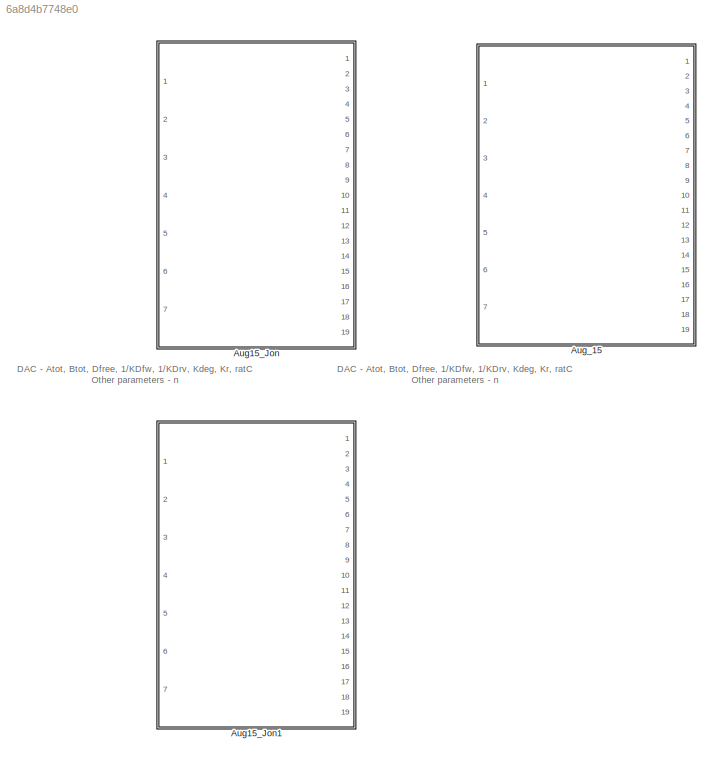
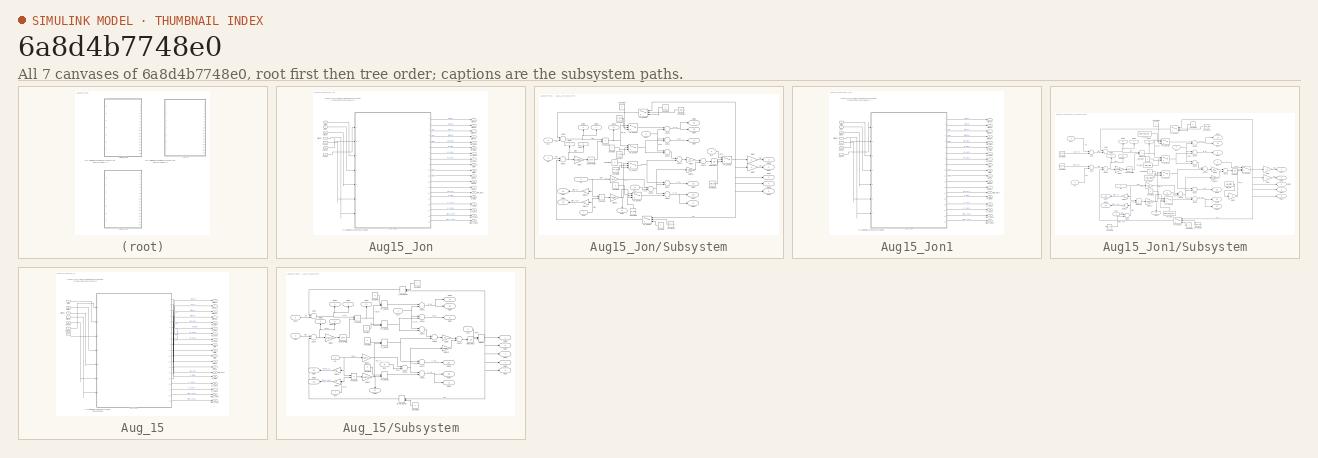
[diagram: thumbnail index - all 7 canvases of the model, root first then tree order]
MODEL slx_6a8d4b7748e0
KIND library
CONFIG AbsTol = auto
CONFIG EnableMultiTasking = off
CONFIG FixedStep = auto
CONFIG MaxStep = auto
CONFIG MinStep = auto
CONFIG RelTol = 1e-3
CONFIG SampleTimeConstraint = Unconstrained
CONFIG Solver = VariableStepAuto
CONFIG SolverName = VariableStepAuto
CONFIG StartTime = 0.0
CONFIG StopTime = 10.0
BLOCK [SubSystem] Aug15_Jon
  Ports = [7, 19]
  RequestExecContextInheritance = off
BLOCK [Outport] Aug15_Jon/Afree(12)
  IconDisplay = Port number
BLOCK [Outport] Aug15_Jon/Afree(13)
  IconDisplay = Port number
  Port = 2
BLOCK [Inport] Aug15_Jon/Atot(0)
  IconDisplay = Port number
BLOCK [Outport] Aug15_Jon/Bfree(14)
  IconDisplay = Port number
  Port = 3
BLOCK [Outport] Aug15_Jon/Bfree(15)
  IconDisplay = Port number
  Port = 4
BLOCK [Inport] Aug15_Jon/Btot(1)
  IconDisplay = Port number
  Port = 2
BLOCK [Inport] Aug15_Jon/Cdeg(4)
  IconDisplay = Port number
  Port = 5
BLOCK [Inport] Aug15_Jon/Cfree(2)
  IconDisplay = Port number
  Port = 3
BLOCK [Outport] Aug15_Jon/Cfree_cp(24)
  IconDisplay = Port number
  Port = 18
BLOCK [Inport] Aug15_Jon/Cprod(5)
  IconDisplay = Port number
  Port = 6
BLOCK [Outport] Aug15_Jon/Ctot+(10)
  IconDisplay = Port number
  Port = 12
BLOCK [Outport] Aug15_Jon/Ctot+(11)
  IconDisplay = Port number
  Port = 13
BLOCK [Outport] Aug15_Jon/Ctot+(9)
  IconDisplay = Port number
  Port = 11
BLOCK [Outport] Aug15_Jon/Ctot-(7)
  IconDisplay = Port number
  Port = 9
BLOCK [Outport] Aug15_Jon/Ctot-(8)
  IconDisplay = Port number
  Port = 10
BLOCK [Inport] Aug15_Jon/Ctot_in(6)
  IconDisplay = Port number
  Port = 7
BLOCK [Inport] Aug15_Jon/Dfree(3)
  IconDisplay = Port number
  Port = 4
BLOCK [Outport] Aug15_Jon/Dfree_cp(25)
  IconDisplay = Port number
  Port = 19
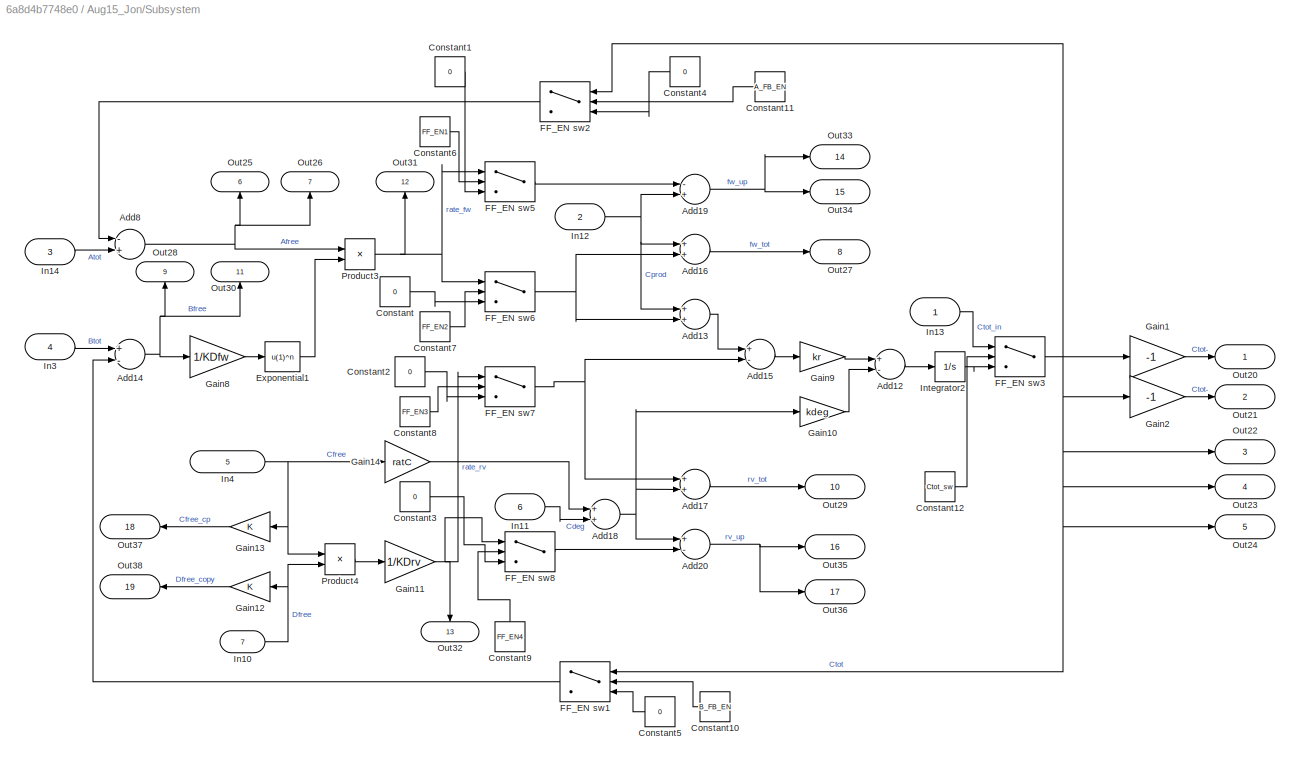
BLOCK [SubSystem] Aug15_Jon/Subsystem
  Ports = [7, 19]
  RequestExecContextInheritance = off
BLOCK [Sum] Aug15_Jon/Subsystem/Add12
  InputSameDT = off
  Inputs = +-
  OutDataTypeStr = Inherit: Inherit via internal rule
  Ports = [2, 1]
  SaturateOnIntegerOverflow = off
BLOCK [Sum] Aug15_Jon/Subsystem/Add13
  InputSameDT = off
  OutDataTypeStr = Inherit: Inherit via internal rule
  Ports = [2, 1]
  SaturateOnIntegerOverflow = off
BLOCK [Sum] Aug15_Jon/Subsystem/Add14
  InputSameDT = off
  Inputs = +-
  OutDataTypeStr = Inherit: Inherit via internal rule
  Ports = [2, 1]
  SaturateOnIntegerOverflow = off
BLOCK [Sum] Aug15_Jon/Subsystem/Add15
  InputSameDT = off
  Inputs = +-
  OutDataTypeStr = Inherit: Inherit via internal rule
  Ports = [2, 1]
  SaturateOnIntegerOverflow = off
BLOCK [Sum] Aug15_Jon/Subsystem/Add16
  InputSameDT = off
  OutDataTypeStr = Inherit: Inherit via internal rule
  Ports = [2, 1]
  SaturateOnIntegerOverflow = off
BLOCK [Sum] Aug15_Jon/Subsystem/Add17
  InputSameDT = off
  OutDataTypeStr = Inherit: Inherit via internal rule
  Ports = [2, 1]
  SaturateOnIntegerOverflow = off
BLOCK [Sum] Aug15_Jon/Subsystem/Add18
  InputSameDT = off
  OutDataTypeStr = Inherit: Inherit via internal rule
  Ports = [2, 1]
  SaturateOnIntegerOverflow = off
BLOCK [Sum] Aug15_Jon/Subsystem/Add19
  InputSameDT = off
  Inputs = -+
  OutDataTypeStr = Inherit: Inherit via internal rule
  Ports = [2, 1]
  SaturateOnIntegerOverflow = off
BLOCK [Sum] Aug15_Jon/Subsystem/Add20
  InputSameDT = off
  Inputs = +-
  OutDataTypeStr = Inherit: Inherit via internal rule
  Ports = [2, 1]
  SaturateOnIntegerOverflow = off
BLOCK [Sum] Aug15_Jon/Subsystem/Add8
  InputSameDT = off
  Inputs = -+
  OutDataTypeStr = Inherit: Inherit via internal rule
  Ports = [2, 1]
  SaturateOnIntegerOverflow = off
BLOCK [Constant] Aug15_Jon/Subsystem/Constant
  Value = 0
BLOCK [Constant] Aug15_Jon/Subsystem/Constant1
  Value = 0
BLOCK [Constant] Aug15_Jon/Subsystem/Constant10
  Value = B_FB_EN
BLOCK [Constant] Aug15_Jon/Subsystem/Constant11
  Value = A_FB_EN
BLOCK [Constant] Aug15_Jon/Subsystem/Constant12
  Value = Ctot_sw
BLOCK [Constant] Aug15_Jon/Subsystem/Constant2
  Value = 0
BLOCK [Constant] Aug15_Jon/Subsystem/Constant3
  Value = 0
BLOCK [Constant] Aug15_Jon/Subsystem/Constant4
  Value = 0
BLOCK [Constant] Aug15_Jon/Subsystem/Constant5
  Value = 0
BLOCK [Constant] Aug15_Jon/Subsystem/Constant6
  Value = FF_EN1
BLOCK [Constant] Aug15_Jon/Subsystem/Constant7
  Value = FF_EN2
BLOCK [Constant] Aug15_Jon/Subsystem/Constant8
  Value = FF_EN3
BLOCK [Constant] Aug15_Jon/Subsystem/Constant9
  Value = FF_EN4
BLOCK [Fcn] Aug15_Jon/Subsystem/Exponential1
  Expr = u(1)^n
BLOCK [Switch] Aug15_Jon/Subsystem/FF_EN sw1
  Criteria = u2 > Threshold
  InputSameDT = off
  SaturateOnIntegerOverflow = off
  Threshold = 0.5
BLOCK [Switch] Aug15_Jon/Subsystem/FF_EN sw2
  Criteria = u2 > Threshold
  InputSameDT = off
  SaturateOnIntegerOverflow = off
  Threshold = 0.5
BLOCK [Switch] Aug15_Jon/Subsystem/FF_EN sw3
  Criteria = u2 > Threshold
  InputSameDT = off
  SaturateOnIntegerOverflow = off
  Threshold = 0.5
BLOCK [Switch] Aug15_Jon/Subsystem/FF_EN sw5
  Criteria = u2 > Threshold
  InputSameDT = off
  SaturateOnIntegerOverflow = off
  Threshold = 0.5
BLOCK [Switch] Aug15_Jon/Subsystem/FF_EN sw6
  Criteria = u2 > Threshold
  InputSameDT = off
  SaturateOnIntegerOverflow = off
  Threshold = 0.5
BLOCK [Switch] Aug15_Jon/Subsystem/FF_EN sw7
  Criteria = u2 > Threshold
  InputSameDT = off
  SaturateOnIntegerOverflow = off
  Threshold = 0.5
BLOCK [Switch] Aug15_Jon/Subsystem/FF_EN sw8
  Criteria = u2 > Threshold
  InputSameDT = off
  SaturateOnIntegerOverflow = off
  Threshold = 0.5
BLOCK [Gain] Aug15_Jon/Subsystem/Gain1
  Gain = -1
  OutDataTypeStr = Inherit: Inherit via internal rule
  ParamDataTypeStr = Inherit: Inherit via internal rule
  SaturateOnIntegerOverflow = off
BLOCK [Gain] Aug15_Jon/Subsystem/Gain10
  Gain = kdeg
  OutDataTypeStr = Inherit: Inherit via internal rule
  ParamDataTypeStr = Inherit: Inherit via internal rule
  SaturateOnIntegerOverflow = off
BLOCK [Gain] Aug15_Jon/Subsystem/Gain11
  Gain = 1/KDrv
  OutDataTypeStr = Inherit: Inherit via internal rule
  ParamDataTypeStr = Inherit: Inherit via internal rule
  SaturateOnIntegerOverflow = off
BLOCK [Gain] Aug15_Jon/Subsystem/Gain12
  OutDataTypeStr = Inherit: Inherit via internal rule
  ParamDataTypeStr = Inherit: Inherit via internal rule
  SaturateOnIntegerOverflow = off
BLOCK [Gain] Aug15_Jon/Subsystem/Gain13
  OutDataTypeStr = Inherit: Inherit via internal rule
  ParamDataTypeStr = Inherit: Inherit via internal rule
  SaturateOnIntegerOverflow = off
BLOCK [Gain] Aug15_Jon/Subsystem/Gain14
  Gain = ratC
  OutDataTypeStr = Inherit: Inherit via internal rule
  ParamDataTypeStr = Inherit: Inherit via internal rule
  SaturateOnIntegerOverflow = off
BLOCK [Gain] Aug15_Jon/Subsystem/Gain2
  Gain = -1
  OutDataTypeStr = Inherit: Inherit via internal rule
  ParamDataTypeStr = Inherit: Inherit via internal rule
  SaturateOnIntegerOverflow = off
BLOCK [Gain] Aug15_Jon/Subsystem/Gain8
  Gain = 1/KDfw
  OutDataTypeStr = Inherit: Inherit via internal rule
  ParamDataTypeStr = Inherit: Inherit via internal rule
  SaturateOnIntegerOverflow = off
BLOCK [Gain] Aug15_Jon/Subsystem/Gain9
  Gain = kr
  OutDataTypeStr = Inherit: Inherit via internal rule
  ParamDataTypeStr = Inherit: Inherit via internal rule
  SaturateOnIntegerOverflow = off
BLOCK [Inport] Aug15_Jon/Subsystem/In10
  IconDisplay = Port number and signal name
  Port = 7
BLOCK [Inport] Aug15_Jon/Subsystem/In11
  IconDisplay = Port number and signal name
  Port = 6
BLOCK [Inport] Aug15_Jon/Subsystem/In12
  IconDisplay = Port number and signal name
  Port = 2
BLOCK [Inport] Aug15_Jon/Subsystem/In13
  IconDisplay = Port number and signal name
BLOCK [Inport] Aug15_Jon/Subsystem/In14
  IconDisplay = Port number and signal name
  Port = 3
BLOCK [Inport] Aug15_Jon/Subsystem/In3
  IconDisplay = Port number and signal name
  Port = 4
BLOCK [Inport] Aug15_Jon/Subsystem/In4
  IconDisplay = Port number and signal name
  Port = 5
BLOCK [Integrator] Aug15_Jon/Subsystem/Integrator2
  InitialCondition = c_ic
  Ports = [1, 1]
BLOCK [Outport] Aug15_Jon/Subsystem/Out20
  IconDisplay = Port number and signal name
BLOCK [Outport] Aug15_Jon/Subsystem/Out21
  IconDisplay = Port number and signal name
  Port = 2
BLOCK [Outport] Aug15_Jon/Subsystem/Out22
  IconDisplay = Port number and signal name
  Port = 3
BLOCK [Outport] Aug15_Jon/Subsystem/Out23
  IconDisplay = Port number and signal name
  Port = 4
BLOCK [Outport] Aug15_Jon/Subsystem/Out24
  IconDisplay = Port number and signal name
  Port = 5
BLOCK [Outport] Aug15_Jon/Subsystem/Out25
  IconDisplay = Port number and signal name
  Port = 6
BLOCK [Outport] Aug15_Jon/Subsystem/Out26
  IconDisplay = Port number and signal name
  Port = 7
BLOCK [Outport] Aug15_Jon/Subsystem/Out27
  IconDisplay = Port number and signal name
  Port = 8
BLOCK [Outport] Aug15_Jon/Subsystem/Out28
  IconDisplay = Port number and signal name
  Port = 9
BLOCK [Outport] Aug15_Jon/Subsystem/Out29
  IconDisplay = Port number and signal name
  Port = 10
BLOCK [Outport] Aug15_Jon/Subsystem/Out30
  IconDisplay = Port number and signal name
  Port = 11
BLOCK [Outport] Aug15_Jon/Subsystem/Out31
  IconDisplay = Port number and signal name
  Port = 12
BLOCK [Outport] Aug15_Jon/Subsystem/Out32
  IconDisplay = Port number and signal name
  Port = 13
BLOCK [Outport] Aug15_Jon/Subsystem/Out33
  IconDisplay = Port number and signal name
  Port = 14
BLOCK [Outport] Aug15_Jon/Subsystem/Out34
  IconDisplay = Port number and signal name
  Port = 15
BLOCK [Outport] Aug15_Jon/Subsystem/Out35
  IconDisplay = Port number and signal name
  Port = 16
BLOCK [Outport] Aug15_Jon/Subsystem/Out36
  IconDisplay = Port number and signal name
  Port = 17
BLOCK [Outport] Aug15_Jon/Subsystem/Out37
  IconDisplay = Port number and signal name
  Port = 18
BLOCK [Outport] Aug15_Jon/Subsystem/Out38
  IconDisplay = Port number and signal name
  Port = 19
BLOCK [Product] Aug15_Jon/Subsystem/Product3
  InputSameDT = off
  OutDataTypeStr = Inherit: Inherit via internal rule
  Ports = [2, 1]
  SaturateOnIntegerOverflow = off
BLOCK [Product] Aug15_Jon/Subsystem/Product4
  InputSameDT = off
  OutDataTypeStr = Inherit: Inherit via internal rule
  Ports = [2, 1]
  SaturateOnIntegerOverflow = off
BLOCK [Outport] Aug15_Jon/fw_tot(18)
  IconDisplay = Port number
  Port = 6
BLOCK [Outport] Aug15_Jon/fw_up(20)
  IconDisplay = Port number
  Port = 7
BLOCK [Outport] Aug15_Jon/fw_up(21)
  IconDisplay = Port number
  Port = 8
BLOCK [Outport] Aug15_Jon/rate_fw(16)
  IconDisplay = Port number
  Port = 5
BLOCK [Outport] Aug15_Jon/rate_rv(17)
  IconDisplay = Port number
  Port = 14
BLOCK [Outport] Aug15_Jon/rv_tot(19)
  IconDisplay = Port number
  Port = 15
BLOCK [Outport] Aug15_Jon/rv_up(22)
  IconDisplay = Port number
  Port = 16
BLOCK [Outport] Aug15_Jon/rv_up(23)
  IconDisplay = Port number
  Port = 17
BLOCK [SubSystem] Aug15_Jon1
  Ports = [7, 19]
  RequestExecContextInheritance = off
BLOCK [Outport] Aug15_Jon1/Afree(12)
  IconDisplay = Port number
BLOCK [Outport] Aug15_Jon1/Afree(13)
  IconDisplay = Port number
  Port = 2
BLOCK [Inport] Aug15_Jon1/Atot(0)
  IconDisplay = Port number
BLOCK [Outport] Aug15_Jon1/Bfree(14)
  IconDisplay = Port number
  Port = 3
BLOCK [Outport] Aug15_Jon1/Bfree(15)
  IconDisplay = Port number
  Port = 4
BLOCK [Inport] Aug15_Jon1/Btot(1)
  IconDisplay = Port number
  Port = 2
BLOCK [Inport] Aug15_Jon1/Cdeg(4)
  IconDisplay = Port number
  Port = 5
BLOCK [Inport] Aug15_Jon1/Cfree(2)
  IconDisplay = Port number
  Port = 3
BLOCK [Outport] Aug15_Jon1/Cfree_cp(24)
  IconDisplay = Port number
  Port = 18
BLOCK [Inport] Aug15_Jon1/Cprod(5)
  IconDisplay = Port number
  Port = 6
BLOCK [Outport] Aug15_Jon1/Ctot+(10)
  IconDisplay = Port number
  Port = 12
BLOCK [Outport] Aug15_Jon1/Ctot+(11)
  IconDisplay = Port number
  Port = 13
BLOCK [Outport] Aug15_Jon1/Ctot+(9)
  IconDisplay = Port number
  Port = 11
BLOCK [Outport] Aug15_Jon1/Ctot-(7)
  IconDisplay = Port number
  Port = 9
BLOCK [Outport] Aug15_Jon1/Ctot-(8)
  IconDisplay = Port number
  Port = 10
BLOCK [Inport] Aug15_Jon1/Ctot_in(6)
  IconDisplay = Port number
  Port = 7
BLOCK [Inport] Aug15_Jon1/Dfree(3)
  IconDisplay = Port number
  Port = 4
BLOCK [Outport] Aug15_Jon1/Dfree_cp(25)
  IconDisplay = Port number
  Port = 19
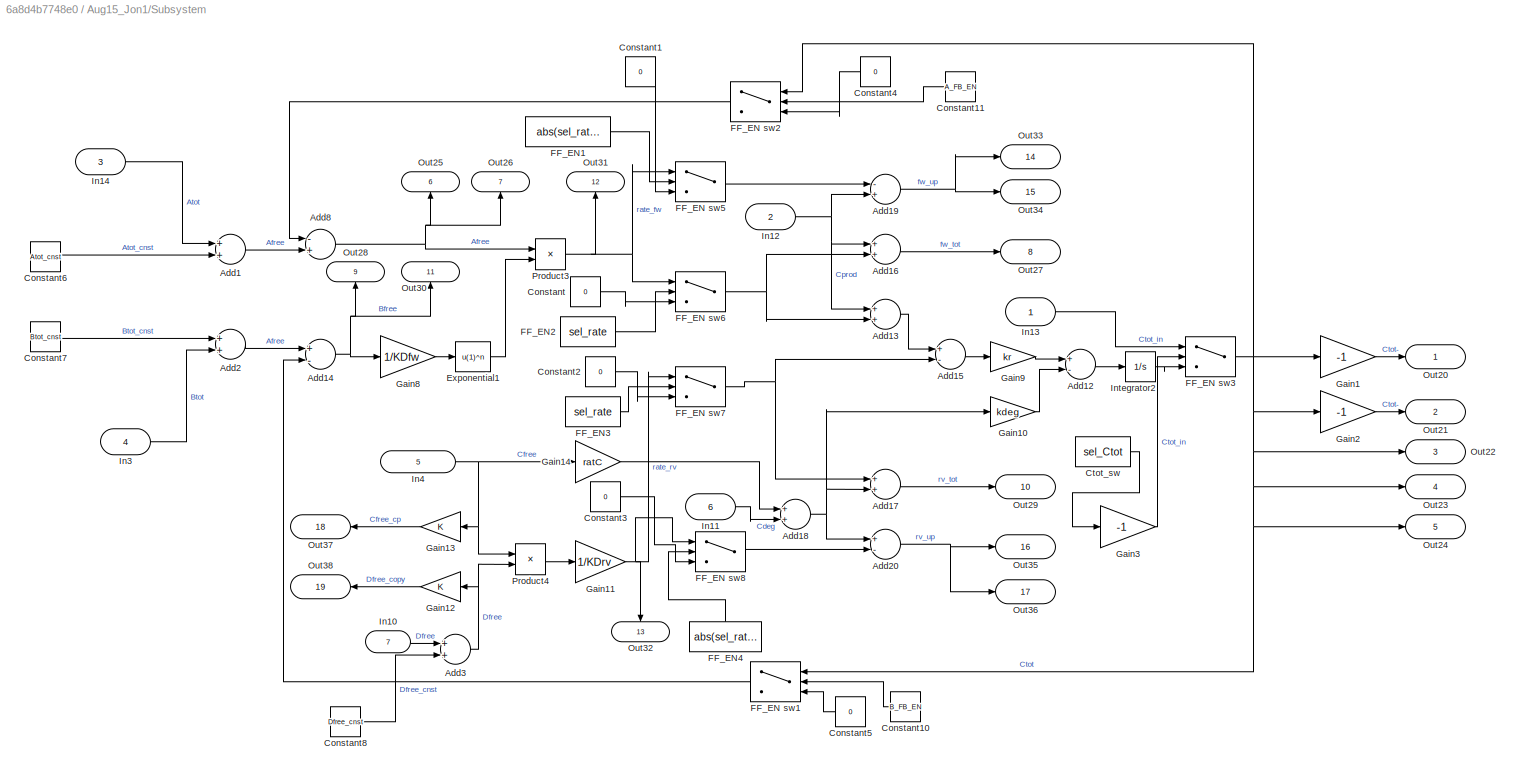
BLOCK [SubSystem] Aug15_Jon1/Subsystem
  Ports = [7, 19]
  RequestExecContextInheritance = off
BLOCK [Sum] Aug15_Jon1/Subsystem/Add1
  InputSameDT = off
  OutDataTypeStr = Inherit: Inherit via internal rule
  Ports = [2, 1]
  SaturateOnIntegerOverflow = off
BLOCK [Sum] Aug15_Jon1/Subsystem/Add12
  InputSameDT = off
  Inputs = +-
  OutDataTypeStr = Inherit: Inherit via internal rule
  Ports = [2, 1]
  SaturateOnIntegerOverflow = off
BLOCK [Sum] Aug15_Jon1/Subsystem/Add13
  InputSameDT = off
  OutDataTypeStr = Inherit: Inherit via internal rule
  Ports = [2, 1]
  SaturateOnIntegerOverflow = off
BLOCK [Sum] Aug15_Jon1/Subsystem/Add14
  InputSameDT = off
  Inputs = +-
  OutDataTypeStr = Inherit: Inherit via internal rule
  Ports = [2, 1]
  SaturateOnIntegerOverflow = off
BLOCK [Sum] Aug15_Jon1/Subsystem/Add15
  InputSameDT = off
  Inputs = +-
  OutDataTypeStr = Inherit: Inherit via internal rule
  Ports = [2, 1]
  SaturateOnIntegerOverflow = off
BLOCK [Sum] Aug15_Jon1/Subsystem/Add16
  InputSameDT = off
  OutDataTypeStr = Inherit: Inherit via internal rule
  Ports = [2, 1]
  SaturateOnIntegerOverflow = off
BLOCK [Sum] Aug15_Jon1/Subsystem/Add17
  InputSameDT = off
  OutDataTypeStr = Inherit: Inherit via internal rule
  Ports = [2, 1]
  SaturateOnIntegerOverflow = off
BLOCK [Sum] Aug15_Jon1/Subsystem/Add18
  InputSameDT = off
  OutDataTypeStr = Inherit: Inherit via internal rule
  Ports = [2, 1]
  SaturateOnIntegerOverflow = off
BLOCK [Sum] Aug15_Jon1/Subsystem/Add19
  InputSameDT = off
  Inputs = -+
  OutDataTypeStr = Inherit: Inherit via internal rule
  Ports = [2, 1]
  SaturateOnIntegerOverflow = off
BLOCK [Sum] Aug15_Jon1/Subsystem/Add2
  InputSameDT = off
  OutDataTypeStr = Inherit: Inherit via internal rule
  Ports = [2, 1]
  SaturateOnIntegerOverflow = off
BLOCK [Sum] Aug15_Jon1/Subsystem/Add20
  InputSameDT = off
  Inputs = +-
  OutDataTypeStr = Inherit: Inherit via internal rule
  Ports = [2, 1]
  SaturateOnIntegerOverflow = off
BLOCK [Sum] Aug15_Jon1/Subsystem/Add3
  InputSameDT = off
  OutDataTypeStr = Inherit: Inherit via internal rule
  Ports = [2, 1]
  SaturateOnIntegerOverflow = off
BLOCK [Sum] Aug15_Jon1/Subsystem/Add8
  InputSameDT = off
  Inputs = -+
  OutDataTypeStr = Inherit: Inherit via internal rule
  Ports = [2, 1]
  SaturateOnIntegerOverflow = off
BLOCK [Constant] Aug15_Jon1/Subsystem/Constant
  Value = 0
BLOCK [Constant] Aug15_Jon1/Subsystem/Constant1
  Value = 0
BLOCK [Constant] Aug15_Jon1/Subsystem/Constant10
  Value = B_FB_EN
BLOCK [Constant] Aug15_Jon1/Subsystem/Constant11
  Value = A_FB_EN
BLOCK [Constant] Aug15_Jon1/Subsystem/Constant2
  Value = 0
BLOCK [Constant] Aug15_Jon1/Subsystem/Constant3
  Value = 0
BLOCK [Constant] Aug15_Jon1/Subsystem/Constant4
  Value = 0
BLOCK [Constant] Aug15_Jon1/Subsystem/Constant5
  Value = 0
BLOCK [Constant] Aug15_Jon1/Subsystem/Constant6
  Value = Atot_cnst
BLOCK [Constant] Aug15_Jon1/Subsystem/Constant7
  Value = Btot_cnst
BLOCK [Constant] Aug15_Jon1/Subsystem/Constant8
  Value = Dfree_cnst
BLOCK [Constant] Aug15_Jon1/Subsystem/Ctot_sw
  Value = sel_Ctot
BLOCK [Fcn] Aug15_Jon1/Subsystem/Exponential1
  Expr = u(1)^n
BLOCK [Switch] Aug15_Jon1/Subsystem/FF_EN sw1
  Criteria = u2 > Threshold
  InputSameDT = off
  SaturateOnIntegerOverflow = off
  Threshold = 0.5
BLOCK [Switch] Aug15_Jon1/Subsystem/FF_EN sw2
  Criteria = u2 > Threshold
  InputSameDT = off
  SaturateOnIntegerOverflow = off
  Threshold = 0.5
BLOCK [Switch] Aug15_Jon1/Subsystem/FF_EN sw3
  Criteria = u2 > Threshold
  InputSameDT = off
  SaturateOnIntegerOverflow = off
  Threshold = -0.5
BLOCK [Switch] Aug15_Jon1/Subsystem/FF_EN sw5
  Criteria = u2 > Threshold
  InputSameDT = off
  SaturateOnIntegerOverflow = off
  Threshold = 0.5
BLOCK [Switch] Aug15_Jon1/Subsystem/FF_EN sw6
  Criteria = u2 > Threshold
  InputSameDT = off
  SaturateOnIntegerOverflow = off
  Threshold = 0.5
BLOCK [Switch] Aug15_Jon1/Subsystem/FF_EN sw7
  Criteria = u2 > Threshold
  InputSameDT = off
  SaturateOnIntegerOverflow = off
  Threshold = 0.5
BLOCK [Switch] Aug15_Jon1/Subsystem/FF_EN sw8
  Criteria = u2 > Threshold
  InputSameDT = off
  SaturateOnIntegerOverflow = off
  Threshold = 0.5
BLOCK [Constant] Aug15_Jon1/Subsystem/FF_EN1
  Value = abs(sel_rate-1)
BLOCK [Constant] Aug15_Jon1/Subsystem/FF_EN2
  Value = sel_rate
BLOCK [Constant] Aug15_Jon1/Subsystem/FF_EN3
  Value = sel_rate
BLOCK [Constant] Aug15_Jon1/Subsystem/FF_EN4
  Value = abs(sel_rate-1)
BLOCK [Gain] Aug15_Jon1/Subsystem/Gain1
  Gain = -1
  OutDataTypeStr = Inherit: Inherit via internal rule
  ParamDataTypeStr = Inherit: Inherit via internal rule
  SaturateOnIntegerOverflow = off
BLOCK [Gain] Aug15_Jon1/Subsystem/Gain10
  Gain = kdeg
  OutDataTypeStr = Inherit: Inherit via internal rule
  ParamDataTypeStr = Inherit: Inherit via internal rule
  SaturateOnIntegerOverflow = off
BLOCK [Gain] Aug15_Jon1/Subsystem/Gain11
  Gain = 1/KDrv
  OutDataTypeStr = Inherit: Inherit via internal rule
  ParamDataTypeStr = Inherit: Inherit via internal rule
  SaturateOnIntegerOverflow = off
BLOCK [Gain] Aug15_Jon1/Subsystem/Gain12
  OutDataTypeStr = Inherit: Inherit via internal rule
  ParamDataTypeStr = Inherit: Inherit via internal rule
  SaturateOnIntegerOverflow = off
BLOCK [Gain] Aug15_Jon1/Subsystem/Gain13
  OutDataTypeStr = Inherit: Inherit via internal rule
  ParamDataTypeStr = Inherit: Inherit via internal rule
  SaturateOnIntegerOverflow = off
BLOCK [Gain] Aug15_Jon1/Subsystem/Gain14
  Gain = ratC
  OutDataTypeStr = Inherit: Inherit via internal rule
  ParamDataTypeStr = Inherit: Inherit via internal rule
  SaturateOnIntegerOverflow = off
BLOCK [Gain] Aug15_Jon1/Subsystem/Gain2
  Gain = -1
  OutDataTypeStr = Inherit: Inherit via internal rule
  ParamDataTypeStr = Inherit: Inherit via internal rule
  SaturateOnIntegerOverflow = off
BLOCK [Gain] Aug15_Jon1/Subsystem/Gain3
  Gain = -1
  OutDataTypeStr = Inherit: Inherit via internal rule
  ParamDataTypeStr = Inherit: Inherit via internal rule
  SaturateOnIntegerOverflow = off
BLOCK [Gain] Aug15_Jon1/Subsystem/Gain8
  Gain = 1/KDfw
  OutDataTypeStr = Inherit: Inherit via internal rule
  ParamDataTypeStr = Inherit: Inherit via internal rule
  SaturateOnIntegerOverflow = off
BLOCK [Gain] Aug15_Jon1/Subsystem/Gain9
  Gain = kr
  OutDataTypeStr = Inherit: Inherit via internal rule
  ParamDataTypeStr = Inherit: Inherit via internal rule
  SaturateOnIntegerOverflow = off
BLOCK [Inport] Aug15_Jon1/Subsystem/In10
  IconDisplay = Port number and signal name
  Port = 7
BLOCK [Inport] Aug15_Jon1/Subsystem/In11
  IconDisplay = Port number and signal name
  Port = 6
BLOCK [Inport] Aug15_Jon1/Subsystem/In12
  IconDisplay = Port number and signal name
  Port = 2
BLOCK [Inport] Aug15_Jon1/Subsystem/In13
  IconDisplay = Port number and signal name
BLOCK [Inport] Aug15_Jon1/Subsystem/In14
  IconDisplay = Port number and signal name
  Port = 3
BLOCK [Inport] Aug15_Jon1/Subsystem/In3
  IconDisplay = Port number and signal name
  Port = 4
BLOCK [Inport] Aug15_Jon1/Subsystem/In4
  IconDisplay = Port number and signal name
  Port = 5
BLOCK [Integrator] Aug15_Jon1/Subsystem/Integrator2
  InitialCondition = c_ic
  Ports = [1, 1]
BLOCK [Outport] Aug15_Jon1/Subsystem/Out20
  IconDisplay = Port number and signal name
BLOCK [Outport] Aug15_Jon1/Subsystem/Out21
  IconDisplay = Port number and signal name
  Port = 2
BLOCK [Outport] Aug15_Jon1/Subsystem/Out22
  IconDisplay = Port number and signal name
  Port = 3
BLOCK [Outport] Aug15_Jon1/Subsystem/Out23
  IconDisplay = Port number and signal name
  Port = 4
BLOCK [Outport] Aug15_Jon1/Subsystem/Out24
  IconDisplay = Port number and signal name
  Port = 5
BLOCK [Outport] Aug15_Jon1/Subsystem/Out25
  IconDisplay = Port number and signal name
  Port = 6
BLOCK [Outport] Aug15_Jon1/Subsystem/Out26
  IconDisplay = Port number and signal name
  Port = 7
BLOCK [Outport] Aug15_Jon1/Subsystem/Out27
  IconDisplay = Port number and signal name
  Port = 8
BLOCK [Outport] Aug15_Jon1/Subsystem/Out28
  IconDisplay = Port number and signal name
  Port = 9
BLOCK [Outport] Aug15_Jon1/Subsystem/Out29
  IconDisplay = Port number and signal name
  Port = 10
BLOCK [Outport] Aug15_Jon1/Subsystem/Out30
  IconDisplay = Port number and signal name
  Port = 11
BLOCK [Outport] Aug15_Jon1/Subsystem/Out31
  IconDisplay = Port number and signal name
  Port = 12
BLOCK [Outport] Aug15_Jon1/Subsystem/Out32
  IconDisplay = Port number and signal name
  Port = 13
BLOCK [Outport] Aug15_Jon1/Subsystem/Out33
  IconDisplay = Port number and signal name
  Port = 14
BLOCK [Outport] Aug15_Jon1/Subsystem/Out34
  IconDisplay = Port number and signal name
  Port = 15
BLOCK [Outport] Aug15_Jon1/Subsystem/Out35
  IconDisplay = Port number and signal name
  Port = 16
BLOCK [Outport] Aug15_Jon1/Subsystem/Out36
  IconDisplay = Port number and signal name
  Port = 17
BLOCK [Outport] Aug15_Jon1/Subsystem/Out37
  IconDisplay = Port number and signal name
  Port = 18
BLOCK [Outport] Aug15_Jon1/Subsystem/Out38
  IconDisplay = Port number and signal name
  Port = 19
BLOCK [Product] Aug15_Jon1/Subsystem/Product3
  InputSameDT = off
  OutDataTypeStr = Inherit: Inherit via internal rule
  Ports = [2, 1]
  SaturateOnIntegerOverflow = off
BLOCK [Product] Aug15_Jon1/Subsystem/Product4
  InputSameDT = off
  OutDataTypeStr = Inherit: Inherit via internal rule
  Ports = [2, 1]
  SaturateOnIntegerOverflow = off
BLOCK [Outport] Aug15_Jon1/fw_tot(18)
  IconDisplay = Port number
  Port = 6
BLOCK [Outport] Aug15_Jon1/fw_up(20)
  IconDisplay = Port number
  Port = 7
BLOCK [Outport] Aug15_Jon1/fw_up(21)
  IconDisplay = Port number
  Port = 8
BLOCK [Outport] Aug15_Jon1/rate_fw(16)
  IconDisplay = Port number
  Port = 5
BLOCK [Outport] Aug15_Jon1/rate_rv(17)
  IconDisplay = Port number
  Port = 14
BLOCK [Outport] Aug15_Jon1/rv_tot(19)
  IconDisplay = Port number
  Port = 15
BLOCK [Outport] Aug15_Jon1/rv_up(22)
  IconDisplay = Port number
  Port = 16
BLOCK [Outport] Aug15_Jon1/rv_up(23)
  IconDisplay = Port number
  Port = 17
BLOCK [SubSystem] Aug_15
  Ports = [7, 19]
  RequestExecContextInheritance = off
BLOCK [Outport] Aug_15/Afree(12)
  IconDisplay = Port number
BLOCK [Outport] Aug_15/Afree(13)
  IconDisplay = Port number
  Port = 2
BLOCK [Inport] Aug_15/Atot(0)
  IconDisplay = Port number
BLOCK [Outport] Aug_15/Bfree(14)
  IconDisplay = Port number
  Port = 3
BLOCK [Outport] Aug_15/Bfree(15)
  IconDisplay = Port number
  Port = 4
BLOCK [Inport] Aug_15/Btot(1)
  IconDisplay = Port number
  Port = 2
BLOCK [Inport] Aug_15/Cdeg(4)
  IconDisplay = Port number
  Port = 5
BLOCK [Inport] Aug_15/Cfree(2)
  IconDisplay = Port number
  Port = 3
BLOCK [Outport] Aug_15/Cfree_cp(24)
  IconDisplay = Port number
  Port = 18
BLOCK [Inport] Aug_15/Cprod(5)
  IconDisplay = Port number
  Port = 6
BLOCK [Outport] Aug_15/Ctot(10)
  IconDisplay = Port number
  Port = 12
BLOCK [Outport] Aug_15/Ctot(11)
  IconDisplay = Port number
  Port = 13
BLOCK [Outport] Aug_15/Ctot(7)
  IconDisplay = Port number
  Port = 9
BLOCK [Outport] Aug_15/Ctot(8)
  IconDisplay = Port number
  Port = 10
BLOCK [Outport] Aug_15/Ctot(9)
  IconDisplay = Port number
  Port = 11
BLOCK [Inport] Aug_15/Ctot_in(6)
  IconDisplay = Port number
  Port = 7
BLOCK [Inport] Aug_15/Dfree(3)
  IconDisplay = Port number
  Port = 4
BLOCK [Outport] Aug_15/Dfree_cp(25)
  IconDisplay = Port number
  Port = 19
BLOCK [SubSystem] Aug_15/Subsystem
  Ports = [7, 19]
  RequestExecContextInheritance = off
BLOCK [ManualSwitch] Aug_15/Subsystem/A_FB_EN sw1
  CurrentSetting = 0
BLOCK [Sum] Aug_15/Subsystem/Add12
  InputSameDT = off
  Inputs = +-
  OutDataTypeStr = Inherit: Inherit via internal rule
  Ports = [2, 1]
  SaturateOnIntegerOverflow = off
BLOCK [Sum] Aug_15/Subsystem/Add13
  InputSameDT = off
  OutDataTypeStr = Inherit: Inherit via internal rule
  Ports = [2, 1]
  SaturateOnIntegerOverflow = off
BLOCK [Sum] Aug_15/Subsystem/Add14
  InputSameDT = off
  Inputs = +-
  OutDataTypeStr = Inherit: Inherit via internal rule
  Ports = [2, 1]
  SaturateOnIntegerOverflow = off
BLOCK [Sum] Aug_15/Subsystem/Add15
  InputSameDT = off
  Inputs = +-
  OutDataTypeStr = Inherit: Inherit via internal rule
  Ports = [2, 1]
  SaturateOnIntegerOverflow = off
BLOCK [Sum] Aug_15/Subsystem/Add16
  InputSameDT = off
  OutDataTypeStr = Inherit: Inherit via internal rule
  Ports = [2, 1]
  SaturateOnIntegerOverflow = off
BLOCK [Sum] Aug_15/Subsystem/Add17
  InputSameDT = off
  OutDataTypeStr = Inherit: Inherit via internal rule
  Ports = [2, 1]
  SaturateOnIntegerOverflow = off
BLOCK [Sum] Aug_15/Subsystem/Add18
  InputSameDT = off
  OutDataTypeStr = Inherit: Inherit via internal rule
  Ports = [2, 1]
  SaturateOnIntegerOverflow = off
BLOCK [Sum] Aug_15/Subsystem/Add19
  InputSameDT = off
  Inputs = -+
  OutDataTypeStr = Inherit: Inherit via internal rule
  Ports = [2, 1]
  SaturateOnIntegerOverflow = off
BLOCK [Sum] Aug_15/Subsystem/Add20
  InputSameDT = off
  Inputs = +-
  OutDataTypeStr = Inherit: Inherit via internal rule
  Ports = [2, 1]
  SaturateOnIntegerOverflow = off
BLOCK [Sum] Aug_15/Subsystem/Add8
  InputSameDT = off
  Inputs = -+
  OutDataTypeStr = Inherit: Inherit via internal rule
  Ports = [2, 1]
  SaturateOnIntegerOverflow = off
BLOCK [ManualSwitch] Aug_15/Subsystem/B_FB_EN sw1
BLOCK [Constant] Aug_15/Subsystem/Constant
  Value = 0
BLOCK [Constant] Aug_15/Subsystem/Constant1
  Value = 0
BLOCK [Constant] Aug_15/Subsystem/Constant2
  Value = 0
BLOCK [Constant] Aug_15/Subsystem/Constant3
  Value = 0
BLOCK [Constant] Aug_15/Subsystem/Constant4
  Value = 0
BLOCK [Constant] Aug_15/Subsystem/Constant5
  Value = 0
BLOCK [ManualSwitch] Aug_15/Subsystem/Ctot sw1
  CurrentSetting = 0
BLOCK [Fcn] Aug_15/Subsystem/Exponential1
  Expr = u(1)^n
BLOCK [ManualSwitch] Aug_15/Subsystem/FF_EN sw5
BLOCK [ManualSwitch] Aug_15/Subsystem/FF_EN sw6
  CurrentSetting = 0
BLOCK [ManualSwitch] Aug_15/Subsystem/FF_EN sw7
  CurrentSetting = 0
BLOCK [ManualSwitch] Aug_15/Subsystem/FF_EN sw8
BLOCK [Gain] Aug_15/Subsystem/Gain10
  Gain = kdeg
  OutDataTypeStr = Inherit: Inherit via internal rule
  ParamDataTypeStr = Inherit: Inherit via internal rule
  SaturateOnIntegerOverflow = off
BLOCK [Gain] Aug_15/Subsystem/Gain11
  Gain = 1/KDrv
  OutDataTypeStr = Inherit: Inherit via internal rule
  ParamDataTypeStr = Inherit: Inherit via internal rule
  SaturateOnIntegerOverflow = off
BLOCK [Gain] Aug_15/Subsystem/Gain12
  OutDataTypeStr = Inherit: Inherit via internal rule
  ParamDataTypeStr = Inherit: Inherit via internal rule
  SaturateOnIntegerOverflow = off
BLOCK [Gain] Aug_15/Subsystem/Gain13
  OutDataTypeStr = Inherit: Inherit via internal rule
  ParamDataTypeStr = Inherit: Inherit via internal rule
  SaturateOnIntegerOverflow = off
BLOCK [Gain] Aug_15/Subsystem/Gain14
  Gain = ratC
  OutDataTypeStr = Inherit: Inherit via internal rule
  ParamDataTypeStr = Inherit: Inherit via internal rule
  SaturateOnIntegerOverflow = off
BLOCK [Gain] Aug_15/Subsystem/Gain8
  Gain = 1/KDfw
  OutDataTypeStr = Inherit: Inherit via internal rule
  ParamDataTypeStr = Inherit: Inherit via internal rule
  SaturateOnIntegerOverflow = off
BLOCK [Gain] Aug_15/Subsystem/Gain9
  Gain = kr
  OutDataTypeStr = Inherit: Inherit via internal rule
  ParamDataTypeStr = Inherit: Inherit via internal rule
  SaturateOnIntegerOverflow = off
BLOCK [Inport] Aug_15/Subsystem/In10
  IconDisplay = Port number and signal name
  Port = 7
BLOCK [Inport] Aug_15/Subsystem/In11
  IconDisplay = Port number and signal name
  Port = 6
BLOCK [Inport] Aug_15/Subsystem/In12
  IconDisplay = Port number and signal name
BLOCK [Inport] Aug_15/Subsystem/In13
  IconDisplay = Port number and signal name
  Port = 3
BLOCK [Inport] Aug_15/Subsystem/In14
  IconDisplay = Port number and signal name
  Port = 2
BLOCK [Inport] Aug_15/Subsystem/In3
  IconDisplay = Port number and signal name
  Port = 4
BLOCK [Inport] Aug_15/Subsystem/In4
  IconDisplay = Port number and signal name
  Port = 5
BLOCK [Integrator] Aug_15/Subsystem/Integrator2
  InitialCondition = 100
  Ports = [1, 1]
BLOCK [Outport] Aug_15/Subsystem/Out20
  IconDisplay = Port number and signal name
BLOCK [Outport] Aug_15/Subsystem/Out21
  IconDisplay = Port number and signal name
  Port = 2
BLOCK [Outport] Aug_15/Subsystem/Out22
  IconDisplay = Port number and signal name
  Port = 3
BLOCK [Outport] Aug_15/Subsystem/Out23
  IconDisplay = Port number and signal name
  Port = 4
BLOCK [Outport] Aug_15/Subsystem/Out24
  IconDisplay = Port number and signal name
  Port = 5
BLOCK [Outport] Aug_15/Subsystem/Out25
  IconDisplay = Port number and signal name
  Port = 6
BLOCK [Outport] Aug_15/Subsystem/Out26
  IconDisplay = Port number and signal name
  Port = 7
BLOCK [Outport] Aug_15/Subsystem/Out27
  IconDisplay = Port number and signal name
  Port = 8
BLOCK [Outport] Aug_15/Subsystem/Out28
  IconDisplay = Port number and signal name
  Port = 9
BLOCK [Outport] Aug_15/Subsystem/Out29
  IconDisplay = Port number and signal name
  Port = 10
BLOCK [Outport] Aug_15/Subsystem/Out30
  IconDisplay = Port number and signal name
  Port = 11
BLOCK [Outport] Aug_15/Subsystem/Out31
  IconDisplay = Port number and signal name
  Port = 12
BLOCK [Outport] Aug_15/Subsystem/Out32
  IconDisplay = Port number and signal name
  Port = 13
BLOCK [Outport] Aug_15/Subsystem/Out33
  IconDisplay = Port number and signal name
  Port = 14
BLOCK [Outport] Aug_15/Subsystem/Out34
  IconDisplay = Port number and signal name
  Port = 15
BLOCK [Outport] Aug_15/Subsystem/Out35
  IconDisplay = Port number and signal name
  Port = 16
BLOCK [Outport] Aug_15/Subsystem/Out36
  IconDisplay = Port number and signal name
  Port = 17
BLOCK [Outport] Aug_15/Subsystem/Out37
  IconDisplay = Port number and signal name
  Port = 18
BLOCK [Outport] Aug_15/Subsystem/Out38
  IconDisplay = Port number and signal name
  Port = 19
BLOCK [Product] Aug_15/Subsystem/Product3
  InputSameDT = off
  OutDataTypeStr = Inherit: Inherit via internal rule
  Ports = [2, 1]
  SaturateOnIntegerOverflow = off
BLOCK [Product] Aug_15/Subsystem/Product4
  InputSameDT = off
  OutDataTypeStr = Inherit: Inherit via internal rule
  Ports = [2, 1]
  SaturateOnIntegerOverflow = off
BLOCK [Outport] Aug_15/fw_tot(18)
  IconDisplay = Port number
  Port = 6
BLOCK [Outport] Aug_15/fw_up(20)
  IconDisplay = Port number
  Port = 7
BLOCK [Outport] Aug_15/fw_up(21)
  IconDisplay = Port number
  Port = 8
BLOCK [Outport] Aug_15/rate_fw(16)
  IconDisplay = Port number
  Port = 5
BLOCK [Outport] Aug_15/rate_rv(17)
  IconDisplay = Port number
  Port = 14
BLOCK [Outport] Aug_15/rv_tot(19)
  IconDisplay = Port number
  Port = 15
BLOCK [Outport] Aug_15/rv_up(22)
  IconDisplay = Port number
  Port = 16
BLOCK [Outport] Aug_15/rv_up(23)
  IconDisplay = Port number
  Port = 17
ANNOTATION (root): DAC - Atot, Btot, Dfree, 1/KDfw, 1/KDrv, Kdeg, Kr, ratC Other parameters - n
ANNOTATION Aug15_Jon: DAC - Atot, Btot, Dfree, 1/KDfw, 1/KDrv, Kdeg, Kr, ratC, n
ANNOTATION Aug15_Jon: This proxy subsystem is used to rearrange the output ports. Zoom in again to see the actual layout
ANNOTATION Aug15_Jon1: DAC - Atot, Btot, Dfree, 1/KDfw, 1/KDrv, Kdeg, Kr, ratC, n
ANNOTATION Aug15_Jon1: This proxy subsystem is used to rearrange the output ports. Zoom in again to see the actual layout
ANNOTATION Aug_15: DAC - Atot, Btot, Dfree, 1/KDfw, 1/KDrv, Kdeg, Kr, ratC Other Parameters - n
ANNOTATION Aug_15: This proxy subsystem is used to rearrange the output ports. Zoom in again to see the actual layout
LINE Aug15_Jon/Atot(0):1 -> Aug15_Jon/Subsystem:3
LINE Aug15_Jon/Btot(1):1 -> Aug15_Jon/Subsystem:4
LINE Aug15_Jon/Cdeg(4):1 -> Aug15_Jon/Subsystem:6
LINE Aug15_Jon/Cfree(2):1 -> Aug15_Jon/Subsystem:5
LINE Aug15_Jon/Cprod(5):1 -> Aug15_Jon/Subsystem:2
LINE Aug15_Jon/Ctot_in(6):1 -> Aug15_Jon/Subsystem:1
LINE Aug15_Jon/Dfree(3):1 -> Aug15_Jon/Subsystem:7
LINE Aug15_Jon/Subsystem/Add12:1 -> Aug15_Jon/Subsystem/Integrator2:1
LINE Aug15_Jon/Subsystem/Add13:1 -> Aug15_Jon/Subsystem/Add15:1
NET Aug15_Jon/Subsystem/Add14:1 -> Aug15_Jon/Subsystem/Gain8:1, Aug15_Jon/Subsystem/Out28:1, Aug15_Jon/Subsystem/Out30:1
LINE Aug15_Jon/Subsystem/Add15:1 -> Aug15_Jon/Subsystem/Gain9:1
LINE Aug15_Jon/Subsystem/Add16:1 -> Aug15_Jon/Subsystem/Out27:1
LINE Aug15_Jon/Subsystem/Add17:1 -> Aug15_Jon/Subsystem/Out29:1
NET Aug15_Jon/Subsystem/Add18:1 -> Aug15_Jon/Subsystem/Add17:2, Aug15_Jon/Subsystem/Add20:1, Aug15_Jon/Subsystem/Gain10:1
NET Aug15_Jon/Subsystem/Add19:1 -> Aug15_Jon/Subsystem/Out33:1, Aug15_Jon/Subsystem/Out34:1
NET Aug15_Jon/Subsystem/Add20:1 -> Aug15_Jon/Subsystem/Out35:1, Aug15_Jon/Subsystem/Out36:1
NET Aug15_Jon/Subsystem/Add8:1 -> Aug15_Jon/Subsystem/Out25:1, Aug15_Jon/Subsystem/Out26:1, Aug15_Jon/Subsystem/Product3:1
LINE Aug15_Jon/Subsystem/Constant10:1 -> Aug15_Jon/Subsystem/FF_EN sw1:2
LINE Aug15_Jon/Subsystem/Constant11:1 -> Aug15_Jon/Subsystem/FF_EN sw2:2
LINE Aug15_Jon/Subsystem/Constant12:1 -> Aug15_Jon/Subsystem/FF_EN sw3:2
LINE Aug15_Jon/Subsystem/Constant1:1 -> Aug15_Jon/Subsystem/FF_EN sw5:3
LINE Aug15_Jon/Subsystem/Constant2:1 -> Aug15_Jon/Subsystem/FF_EN sw7:3
LINE Aug15_Jon/Subsystem/Constant3:1 -> Aug15_Jon/Subsystem/FF_EN sw8:3
LINE Aug15_Jon/Subsystem/Constant4:1 -> Aug15_Jon/Subsystem/FF_EN sw2:3
LINE Aug15_Jon/Subsystem/Constant5:1 -> Aug15_Jon/Subsystem/FF_EN sw1:3
LINE Aug15_Jon/Subsystem/Constant6:1 -> Aug15_Jon/Subsystem/FF_EN sw5:2
LINE Aug15_Jon/Subsystem/Constant7:1 -> Aug15_Jon/Subsystem/FF_EN sw6:2
LINE Aug15_Jon/Subsystem/Constant8:1 -> Aug15_Jon/Subsystem/FF_EN sw7:2
LINE Aug15_Jon/Subsystem/Constant9:1 -> Aug15_Jon/Subsystem/FF_EN sw8:2
LINE Aug15_Jon/Subsystem/Constant:1 -> Aug15_Jon/Subsystem/FF_EN sw6:3
LINE Aug15_Jon/Subsystem/Exponential1:1 -> Aug15_Jon/Subsystem/Product3:2
LINE Aug15_Jon/Subsystem/FF_EN sw1:1 -> Aug15_Jon/Subsystem/Add14:2
LINE Aug15_Jon/Subsystem/FF_EN sw2:1 -> Aug15_Jon/Subsystem/Add8:1
NET Aug15_Jon/Subsystem/FF_EN sw3:1 -> Aug15_Jon/Subsystem/FF_EN sw1:1, Aug15_Jon/Subsystem/FF_EN sw2:1, Aug15_Jon/Subsystem/Gain1:1, Aug15_Jon/Subsystem/Gain2:1, Aug15_Jon/Subsystem/Out22:1, Aug15_Jon/Subsystem/Out23:1, Aug15_Jon/Subsystem/Out24:1
LINE Aug15_Jon/Subsystem/FF_EN sw5:1 -> Aug15_Jon/Subsystem/Add19:1
NET Aug15_Jon/Subsystem/FF_EN sw6:1 -> Aug15_Jon/Subsystem/Add13:2, Aug15_Jon/Subsystem/Add16:2
NET Aug15_Jon/Subsystem/FF_EN sw7:1 -> Aug15_Jon/Subsystem/Add15:2, Aug15_Jon/Subsystem/Add17:1
LINE Aug15_Jon/Subsystem/FF_EN sw8:1 -> Aug15_Jon/Subsystem/Add20:2
LINE Aug15_Jon/Subsystem/Gain10:1 -> Aug15_Jon/Subsystem/Add12:2
NET Aug15_Jon/Subsystem/Gain11:1 -> Aug15_Jon/Subsystem/FF_EN sw7:1, Aug15_Jon/Subsystem/FF_EN sw8:1, Aug15_Jon/Subsystem/Out32:1
LINE Aug15_Jon/Subsystem/Gain12:1 -> Aug15_Jon/Subsystem/Out38:1
LINE Aug15_Jon/Subsystem/Gain13:1 -> Aug15_Jon/Subsystem/Out37:1
LINE Aug15_Jon/Subsystem/Gain14:1 -> Aug15_Jon/Subsystem/Add18:1
LINE Aug15_Jon/Subsystem/Gain1:1 -> Aug15_Jon/Subsystem/Out20:1
LINE Aug15_Jon/Subsystem/Gain2:1 -> Aug15_Jon/Subsystem/Out21:1
LINE Aug15_Jon/Subsystem/Gain8:1 -> Aug15_Jon/Subsystem/Exponential1:1
LINE Aug15_Jon/Subsystem/Gain9:1 -> Aug15_Jon/Subsystem/Add12:1
NET Aug15_Jon/Subsystem/In10:1 -> Aug15_Jon/Subsystem/Gain12:1, Aug15_Jon/Subsystem/Product4:2
LINE Aug15_Jon/Subsystem/In11:1 -> Aug15_Jon/Subsystem/Add18:2
NET Aug15_Jon/Subsystem/In12:1 -> Aug15_Jon/Subsystem/Add13:1, Aug15_Jon/Subsystem/Add16:1, Aug15_Jon/Subsystem/Add19:2
LINE Aug15_Jon/Subsystem/In13:1 -> Aug15_Jon/Subsystem/FF_EN sw3:1
LINE Aug15_Jon/Subsystem/In14:1 -> Aug15_Jon/Subsystem/Add8:2
LINE Aug15_Jon/Subsystem/In3:1 -> Aug15_Jon/Subsystem/Add14:1
NET Aug15_Jon/Subsystem/In4:1 -> Aug15_Jon/Subsystem/Gain13:1, Aug15_Jon/Subsystem/Gain14:1, Aug15_Jon/Subsystem/Product4:1
LINE Aug15_Jon/Subsystem/Integrator2:1 -> Aug15_Jon/Subsystem/FF_EN sw3:3
NET Aug15_Jon/Subsystem/Product3:1 -> Aug15_Jon/Subsystem/FF_EN sw5:1, Aug15_Jon/Subsystem/FF_EN sw6:1, Aug15_Jon/Subsystem/Out31:1
LINE Aug15_Jon/Subsystem/Product4:1 -> Aug15_Jon/Subsystem/Gain11:1
LINE Aug15_Jon/Subsystem:1 -> Aug15_Jon/Ctot-(7):1
LINE Aug15_Jon/Subsystem:10 -> Aug15_Jon/rv_tot(19):1
LINE Aug15_Jon/Subsystem:11 -> Aug15_Jon/Bfree(15):1
LINE Aug15_Jon/Subsystem:12 -> Aug15_Jon/rate_fw(16):1
LINE Aug15_Jon/Subsystem:13 -> Aug15_Jon/rate_rv(17):1
LINE Aug15_Jon/Subsystem:14 -> Aug15_Jon/fw_up(20):1
LINE Aug15_Jon/Subsystem:15 -> Aug15_Jon/fw_up(21):1
LINE Aug15_Jon/Subsystem:16 -> Aug15_Jon/rv_up(22):1
LINE Aug15_Jon/Subsystem:17 -> Aug15_Jon/rv_up(23):1
LINE Aug15_Jon/Subsystem:18 -> Aug15_Jon/Cfree_cp(24):1
LINE Aug15_Jon/Subsystem:19 -> Aug15_Jon/Dfree_cp(25):1
LINE Aug15_Jon/Subsystem:2 -> Aug15_Jon/Ctot-(8):1
LINE Aug15_Jon/Subsystem:3 -> Aug15_Jon/Ctot+(9):1
LINE Aug15_Jon/Subsystem:4 -> Aug15_Jon/Ctot+(10):1
LINE Aug15_Jon/Subsystem:5 -> Aug15_Jon/Ctot+(11):1
LINE Aug15_Jon/Subsystem:6 -> Aug15_Jon/Afree(12):1
LINE Aug15_Jon/Subsystem:7 -> Aug15_Jon/Afree(13):1
LINE Aug15_Jon/Subsystem:8 -> Aug15_Jon/fw_tot(18):1
LINE Aug15_Jon/Subsystem:9 -> Aug15_Jon/Bfree(14):1
LINE Aug15_Jon1/Atot(0):1 -> Aug15_Jon1/Subsystem:3
LINE Aug15_Jon1/Btot(1):1 -> Aug15_Jon1/Subsystem:4
LINE Aug15_Jon1/Cdeg(4):1 -> Aug15_Jon1/Subsystem:6
LINE Aug15_Jon1/Cfree(2):1 -> Aug15_Jon1/Subsystem:5
LINE Aug15_Jon1/Cprod(5):1 -> Aug15_Jon1/Subsystem:2
LINE Aug15_Jon1/Ctot_in(6):1 -> Aug15_Jon1/Subsystem:1
LINE Aug15_Jon1/Dfree(3):1 -> Aug15_Jon1/Subsystem:7
LINE Aug15_Jon1/Subsystem/Add12:1 -> Aug15_Jon1/Subsystem/Integrator2:1
LINE Aug15_Jon1/Subsystem/Add13:1 -> Aug15_Jon1/Subsystem/Add15:1
NET Aug15_Jon1/Subsystem/Add14:1 -> Aug15_Jon1/Subsystem/Gain8:1, Aug15_Jon1/Subsystem/Out28:1, Aug15_Jon1/Subsystem/Out30:1
LINE Aug15_Jon1/Subsystem/Add15:1 -> Aug15_Jon1/Subsystem/Gain9:1
LINE Aug15_Jon1/Subsystem/Add16:1 -> Aug15_Jon1/Subsystem/Out27:1
LINE Aug15_Jon1/Subsystem/Add17:1 -> Aug15_Jon1/Subsystem/Out29:1
NET Aug15_Jon1/Subsystem/Add18:1 -> Aug15_Jon1/Subsystem/Add17:2, Aug15_Jon1/Subsystem/Add20:1, Aug15_Jon1/Subsystem/Gain10:1
NET Aug15_Jon1/Subsystem/Add19:1 -> Aug15_Jon1/Subsystem/Out33:1, Aug15_Jon1/Subsystem/Out34:1
LINE Aug15_Jon1/Subsystem/Add1:1 -> Aug15_Jon1/Subsystem/Add8:2
NET Aug15_Jon1/Subsystem/Add20:1 -> Aug15_Jon1/Subsystem/Out35:1, Aug15_Jon1/Subsystem/Out36:1
LINE Aug15_Jon1/Subsystem/Add2:1 -> Aug15_Jon1/Subsystem/Add14:1
NET Aug15_Jon1/Subsystem/Add3:1 -> Aug15_Jon1/Subsystem/Gain12:1, Aug15_Jon1/Subsystem/Product4:2
NET Aug15_Jon1/Subsystem/Add8:1 -> Aug15_Jon1/Subsystem/Out25:1, Aug15_Jon1/Subsystem/Out26:1, Aug15_Jon1/Subsystem/Product3:1
LINE Aug15_Jon1/Subsystem/Constant10:1 -> Aug15_Jon1/Subsystem/FF_EN sw1:2
LINE Aug15_Jon1/Subsystem/Constant11:1 -> Aug15_Jon1/Subsystem/FF_EN sw2:2
LINE Aug15_Jon1/Subsystem/Constant1:1 -> Aug15_Jon1/Subsystem/FF_EN sw5:3
LINE Aug15_Jon1/Subsystem/Constant2:1 -> Aug15_Jon1/Subsystem/FF_EN sw7:3
LINE Aug15_Jon1/Subsystem/Constant3:1 -> Aug15_Jon1/Subsystem/FF_EN sw8:3
LINE Aug15_Jon1/Subsystem/Constant4:1 -> Aug15_Jon1/Subsystem/FF_EN sw2:3
LINE Aug15_Jon1/Subsystem/Constant5:1 -> Aug15_Jon1/Subsystem/FF_EN sw1:3
LINE Aug15_Jon1/Subsystem/Constant6:1 -> Aug15_Jon1/Subsystem/Add1:2
LINE Aug15_Jon1/Subsystem/Constant7:1 -> Aug15_Jon1/Subsystem/Add2:1
LINE Aug15_Jon1/Subsystem/Constant8:1 -> Aug15_Jon1/Subsystem/Add3:2
LINE Aug15_Jon1/Subsystem/Constant:1 -> Aug15_Jon1/Subsystem/FF_EN sw6:3
LINE Aug15_Jon1/Subsystem/Ctot_sw:1 -> Aug15_Jon1/Subsystem/Gain3:1
LINE Aug15_Jon1/Subsystem/Exponential1:1 -> Aug15_Jon1/Subsystem/Product3:2
LINE Aug15_Jon1/Subsystem/FF_EN sw1:1 -> Aug15_Jon1/Subsystem/Add14:2
LINE Aug15_Jon1/Subsystem/FF_EN sw2:1 -> Aug15_Jon1/Subsystem/Add8:1
NET Aug15_Jon1/Subsystem/FF_EN sw3:1 -> Aug15_Jon1/Subsystem/FF_EN sw1:1, Aug15_Jon1/Subsystem/FF_EN sw2:1, Aug15_Jon1/Subsystem/Gain1:1, Aug15_Jon1/Subsystem/Gain2:1, Aug15_Jon1/Subsystem/Out22:1, Aug15_Jon1/Subsystem/Out23:1, Aug15_Jon1/Subsystem/Out24:1
LINE Aug15_Jon1/Subsystem/FF_EN sw5:1 -> Aug15_Jon1/Subsystem/Add19:1
NET Aug15_Jon1/Subsystem/FF_EN sw6:1 -> Aug15_Jon1/Subsystem/Add13:2, Aug15_Jon1/Subsystem/Add16:2
NET Aug15_Jon1/Subsystem/FF_EN sw7:1 -> Aug15_Jon1/Subsystem/Add15:2, Aug15_Jon1/Subsystem/Add17:1
LINE Aug15_Jon1/Subsystem/FF_EN sw8:1 -> Aug15_Jon1/Subsystem/Add20:2
LINE Aug15_Jon1/Subsystem/FF_EN1:1 -> Aug15_Jon1/Subsystem/FF_EN sw5:2
LINE Aug15_Jon1/Subsystem/FF_EN2:1 -> Aug15_Jon1/Subsystem/FF_EN sw6:2
LINE Aug15_Jon1/Subsystem/FF_EN3:1 -> Aug15_Jon1/Subsystem/FF_EN sw7:2
LINE Aug15_Jon1/Subsystem/FF_EN4:1 -> Aug15_Jon1/Subsystem/FF_EN sw8:2
LINE Aug15_Jon1/Subsystem/Gain10:1 -> Aug15_Jon1/Subsystem/Add12:2
NET Aug15_Jon1/Subsystem/Gain11:1 -> Aug15_Jon1/Subsystem/FF_EN sw7:1, Aug15_Jon1/Subsystem/FF_EN sw8:1, Aug15_Jon1/Subsystem/Out32:1
LINE Aug15_Jon1/Subsystem/Gain12:1 -> Aug15_Jon1/Subsystem/Out38:1
LINE Aug15_Jon1/Subsystem/Gain13:1 -> Aug15_Jon1/Subsystem/Out37:1
LINE Aug15_Jon1/Subsystem/Gain14:1 -> Aug15_Jon1/Subsystem/Add18:1
LINE Aug15_Jon1/Subsystem/Gain1:1 -> Aug15_Jon1/Subsystem/Out20:1
LINE Aug15_Jon1/Subsystem/Gain2:1 -> Aug15_Jon1/Subsystem/Out21:1
LINE Aug15_Jon1/Subsystem/Gain3:1 -> Aug15_Jon1/Subsystem/FF_EN sw3:2
LINE Aug15_Jon1/Subsystem/Gain8:1 -> Aug15_Jon1/Subsystem/Exponential1:1
LINE Aug15_Jon1/Subsystem/Gain9:1 -> Aug15_Jon1/Subsystem/Add12:1
LINE Aug15_Jon1/Subsystem/In10:1 -> Aug15_Jon1/Subsystem/Add3:1
LINE Aug15_Jon1/Subsystem/In11:1 -> Aug15_Jon1/Subsystem/Add18:2
NET Aug15_Jon1/Subsystem/In12:1 -> Aug15_Jon1/Subsystem/Add13:1, Aug15_Jon1/Subsystem/Add16:1, Aug15_Jon1/Subsystem/Add19:2
LINE Aug15_Jon1/Subsystem/In13:1 -> Aug15_Jon1/Subsystem/FF_EN sw3:1
LINE Aug15_Jon1/Subsystem/In14:1 -> Aug15_Jon1/Subsystem/Add1:1
LINE Aug15_Jon1/Subsystem/In3:1 -> Aug15_Jon1/Subsystem/Add2:2
NET Aug15_Jon1/Subsystem/In4:1 -> Aug15_Jon1/Subsystem/Gain13:1, Aug15_Jon1/Subsystem/Gain14:1, Aug15_Jon1/Subsystem/Product4:1
LINE Aug15_Jon1/Subsystem/Integrator2:1 -> Aug15_Jon1/Subsystem/FF_EN sw3:3
NET Aug15_Jon1/Subsystem/Product3:1 -> Aug15_Jon1/Subsystem/FF_EN sw5:1, Aug15_Jon1/Subsystem/FF_EN sw6:1, Aug15_Jon1/Subsystem/Out31:1
LINE Aug15_Jon1/Subsystem/Product4:1 -> Aug15_Jon1/Subsystem/Gain11:1
LINE Aug15_Jon1/Subsystem:1 -> Aug15_Jon1/Ctot-(7):1
LINE Aug15_Jon1/Subsystem:10 -> Aug15_Jon1/rv_tot(19):1
LINE Aug15_Jon1/Subsystem:11 -> Aug15_Jon1/Bfree(15):1
LINE Aug15_Jon1/Subsystem:12 -> Aug15_Jon1/rate_fw(16):1
LINE Aug15_Jon1/Subsystem:13 -> Aug15_Jon1/rate_rv(17):1
LINE Aug15_Jon1/Subsystem:14 -> Aug15_Jon1/fw_up(20):1
LINE Aug15_Jon1/Subsystem:15 -> Aug15_Jon1/fw_up(21):1
LINE Aug15_Jon1/Subsystem:16 -> Aug15_Jon1/rv_up(22):1
LINE Aug15_Jon1/Subsystem:17 -> Aug15_Jon1/rv_up(23):1
LINE Aug15_Jon1/Subsystem:18 -> Aug15_Jon1/Cfree_cp(24):1
LINE Aug15_Jon1/Subsystem:19 -> Aug15_Jon1/Dfree_cp(25):1
LINE Aug15_Jon1/Subsystem:2 -> Aug15_Jon1/Ctot-(8):1
LINE Aug15_Jon1/Subsystem:3 -> Aug15_Jon1/Ctot+(9):1
LINE Aug15_Jon1/Subsystem:4 -> Aug15_Jon1/Ctot+(10):1
LINE Aug15_Jon1/Subsystem:5 -> Aug15_Jon1/Ctot+(11):1
LINE Aug15_Jon1/Subsystem:6 -> Aug15_Jon1/Afree(12):1
LINE Aug15_Jon1/Subsystem:7 -> Aug15_Jon1/Afree(13):1
LINE Aug15_Jon1/Subsystem:8 -> Aug15_Jon1/fw_tot(18):1
LINE Aug15_Jon1/Subsystem:9 -> Aug15_Jon1/Bfree(14):1
LINE Aug_15/Atot(0):1 -> Aug_15/Subsystem:2
LINE Aug_15/Btot(1):1 -> Aug_15/Subsystem:4
LINE Aug_15/Cdeg(4):1 -> Aug_15/Subsystem:6
LINE Aug_15/Cfree(2):1 -> Aug_15/Subsystem:5
LINE Aug_15/Cprod(5):1 -> Aug_15/Subsystem:1
LINE Aug_15/Ctot_in(6):1 -> Aug_15/Subsystem:3
LINE Aug_15/Dfree(3):1 -> Aug_15/Subsystem:7
LINE Aug_15/Subsystem/A_FB_EN sw1:1 -> Aug_15/Subsystem/Add8:1
LINE Aug_15/Subsystem/Add12:1 -> Aug_15/Subsystem/Integrator2:1
LINE Aug_15/Subsystem/Add13:1 -> Aug_15/Subsystem/Add15:1
NET Aug_15/Subsystem/Add14:1 -> Aug_15/Subsystem/Gain8:1, Aug_15/Subsystem/Out28:1, Aug_15/Subsystem/Out30:1
LINE Aug_15/Subsystem/Add15:1 -> Aug_15/Subsystem/Gain9:1
LINE Aug_15/Subsystem/Add16:1 -> Aug_15/Subsystem/Out27:1
LINE Aug_15/Subsystem/Add17:1 -> Aug_15/Subsystem/Out29:1
NET Aug_15/Subsystem/Add18:1 -> Aug_15/Subsystem/Add17:2, Aug_15/Subsystem/Add20:1, Aug_15/Subsystem/Gain10:1
NET Aug_15/Subsystem/Add19:1 -> Aug_15/Subsystem/Out33:1, Aug_15/Subsystem/Out34:1
NET Aug_15/Subsystem/Add20:1 -> Aug_15/Subsystem/Out35:1, Aug_15/Subsystem/Out36:1
NET Aug_15/Subsystem/Add8:1 -> Aug_15/Subsystem/Out25:1, Aug_15/Subsystem/Out26:1, Aug_15/Subsystem/Product3:1
LINE Aug_15/Subsystem/B_FB_EN sw1:1 -> Aug_15/Subsystem/Add14:2
LINE Aug_15/Subsystem/Constant1:1 -> Aug_15/Subsystem/FF_EN sw5:1
LINE Aug_15/Subsystem/Constant2:1 -> Aug_15/Subsystem/FF_EN sw7:1
LINE Aug_15/Subsystem/Constant3:1 -> Aug_15/Subsystem/FF_EN sw8:1
LINE Aug_15/Subsystem/Constant4:1 -> Aug_15/Subsystem/A_FB_EN sw1:1
LINE Aug_15/Subsystem/Constant5:1 -> Aug_15/Subsystem/B_FB_EN sw1:2
LINE Aug_15/Subsystem/Constant:1 -> Aug_15/Subsystem/FF_EN sw6:1
NET Aug_15/Subsystem/Ctot sw1:1 -> Aug_15/Subsystem/A_FB_EN sw1:2, Aug_15/Subsystem/B_FB_EN sw1:1, Aug_15/Subsystem/Out20:1, Aug_15/Subsystem/Out21:1, Aug_15/Subsystem/Out22:1, Aug_15/Subsystem/Out23:1, Aug_15/Subsystem/Out24:1
LINE Aug_15/Subsystem/Exponential1:1 -> Aug_15/Subsystem/Product3:2
LINE Aug_15/Subsystem/FF_EN sw5:1 -> Aug_15/Subsystem/Add19:1
NET Aug_15/Subsystem/FF_EN sw6:1 -> Aug_15/Subsystem/Add13:2, Aug_15/Subsystem/Add16:2
NET Aug_15/Subsystem/FF_EN sw7:1 -> Aug_15/Subsystem/Add15:2, Aug_15/Subsystem/Add17:1
LINE Aug_15/Subsystem/FF_EN sw8:1 -> Aug_15/Subsystem/Add20:2
LINE Aug_15/Subsystem/Gain10:1 -> Aug_15/Subsystem/Add12:2
NET Aug_15/Subsystem/Gain11:1 -> Aug_15/Subsystem/FF_EN sw7:2, Aug_15/Subsystem/FF_EN sw8:2, Aug_15/Subsystem/Out32:1
LINE Aug_15/Subsystem/Gain12:1 -> Aug_15/Subsystem/Out38:1
LINE Aug_15/Subsystem/Gain13:1 -> Aug_15/Subsystem/Out37:1
LINE Aug_15/Subsystem/Gain14:1 -> Aug_15/Subsystem/Add18:1
LINE Aug_15/Subsystem/Gain8:1 -> Aug_15/Subsystem/Exponential1:1
LINE Aug_15/Subsystem/Gain9:1 -> Aug_15/Subsystem/Add12:1
NET Aug_15/Subsystem/In10:1 -> Aug_15/Subsystem/Gain12:1, Aug_15/Subsystem/Product4:2
LINE Aug_15/Subsystem/In11:1 -> Aug_15/Subsystem/Add18:2
NET Aug_15/Subsystem/In12:1 -> Aug_15/Subsystem/Add13:1, Aug_15/Subsystem/Add16:1, Aug_15/Subsystem/Add19:2
LINE Aug_15/Subsystem/In13:1 -> Aug_15/Subsystem/Ctot sw1:1
LINE Aug_15/Subsystem/In14:1 -> Aug_15/Subsystem/Add8:2
LINE Aug_15/Subsystem/In3:1 -> Aug_15/Subsystem/Add14:1
NET Aug_15/Subsystem/In4:1 -> Aug_15/Subsystem/Gain13:1, Aug_15/Subsystem/Gain14:1, Aug_15/Subsystem/Product4:1
LINE Aug_15/Subsystem/Integrator2:1 -> Aug_15/Subsystem/Ctot sw1:2
NET Aug_15/Subsystem/Product3:1 -> Aug_15/Subsystem/FF_EN sw5:2, Aug_15/Subsystem/FF_EN sw6:2, Aug_15/Subsystem/Out31:1
LINE Aug_15/Subsystem/Product4:1 -> Aug_15/Subsystem/Gain11:1
LINE Aug_15/Subsystem:1 -> Aug_15/Ctot(7):1
LINE Aug_15/Subsystem:10 -> Aug_15/rv_tot(19):1
LINE Aug_15/Subsystem:11 -> Aug_15/Bfree(15):1
LINE Aug_15/Subsystem:12 -> Aug_15/rate_fw(16):1
LINE Aug_15/Subsystem:13 -> Aug_15/rate_rv(17):1
LINE Aug_15/Subsystem:14 -> Aug_15/fw_up(20):1
LINE Aug_15/Subsystem:15 -> Aug_15/fw_up(21):1
LINE Aug_15/Subsystem:16 -> Aug_15/rv_up(22):1
LINE Aug_15/Subsystem:17 -> Aug_15/rv_up(23):1
LINE Aug_15/Subsystem:18 -> Aug_15/Cfree_cp(24):1
LINE Aug_15/Subsystem:19 -> Aug_15/Dfree_cp(25):1
LINE Aug_15/Subsystem:2 -> Aug_15/Ctot(8):1
LINE Aug_15/Subsystem:3 -> Aug_15/Ctot(9):1
LINE Aug_15/Subsystem:4 -> Aug_15/Ctot(10):1
LINE Aug_15/Subsystem:5 -> Aug_15/Ctot(11):1
LINE Aug_15/Subsystem:6 -> Aug_15/Afree(12):1
LINE Aug_15/Subsystem:7 -> Aug_15/Afree(13):1
LINE Aug_15/Subsystem:8 -> Aug_15/fw_tot(18):1
LINE Aug_15/Subsystem:9 -> Aug_15/Bfree(14):1
note: NET lines group one-source signal fan-out (src -> all destinations, sorted); 1:1 wires keep LINE
